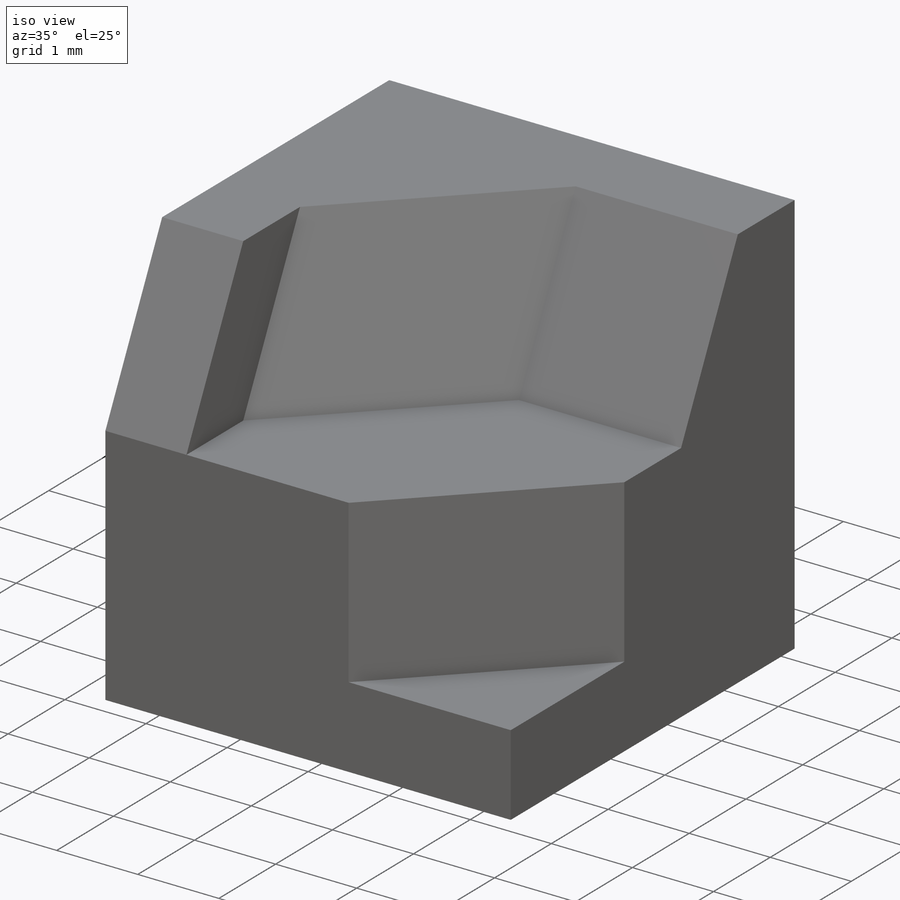
[diagram: iso view]
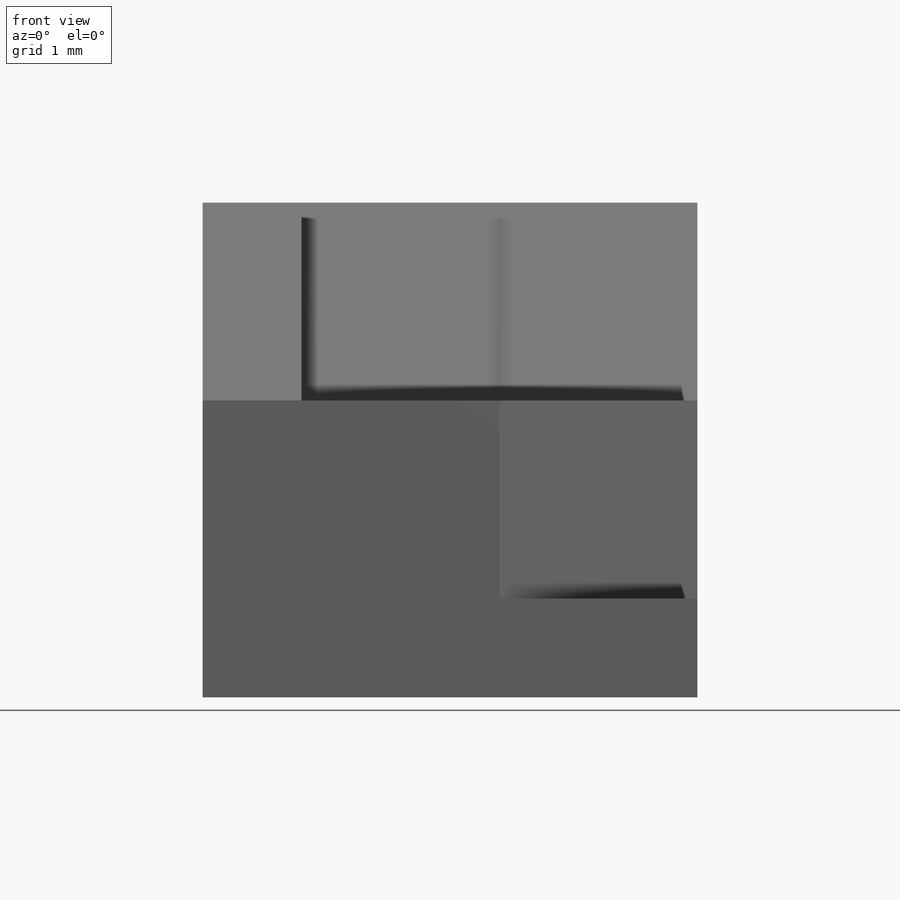
[diagram: front view]
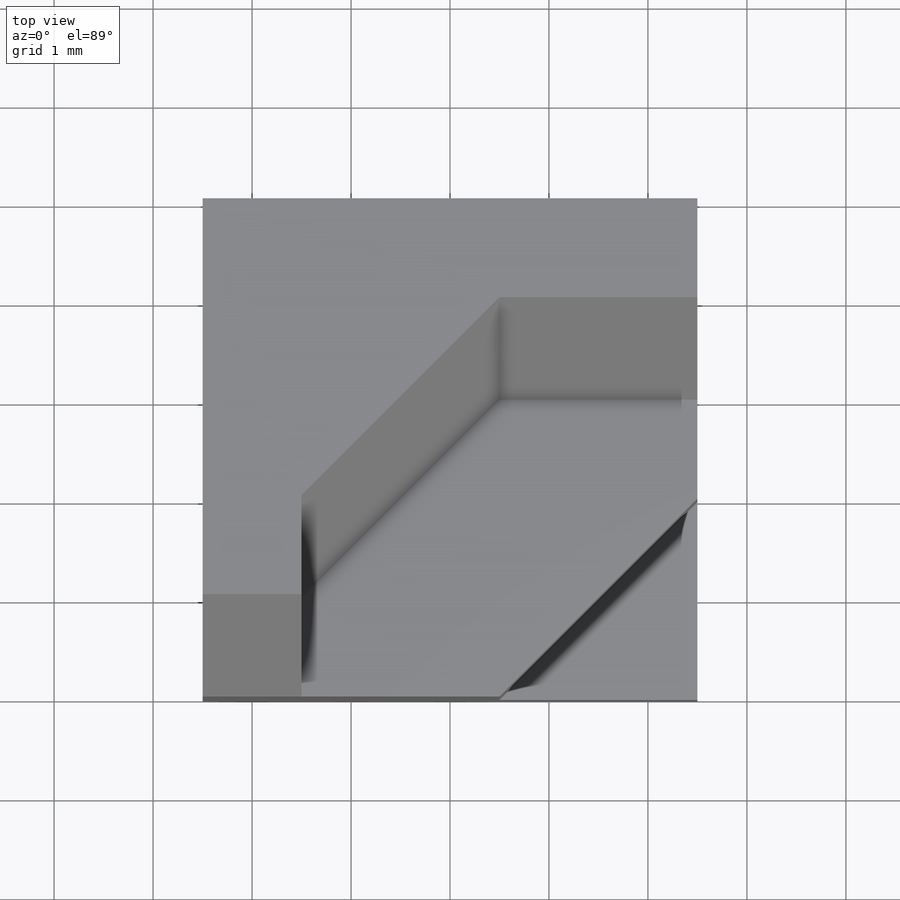
[diagram: top view]
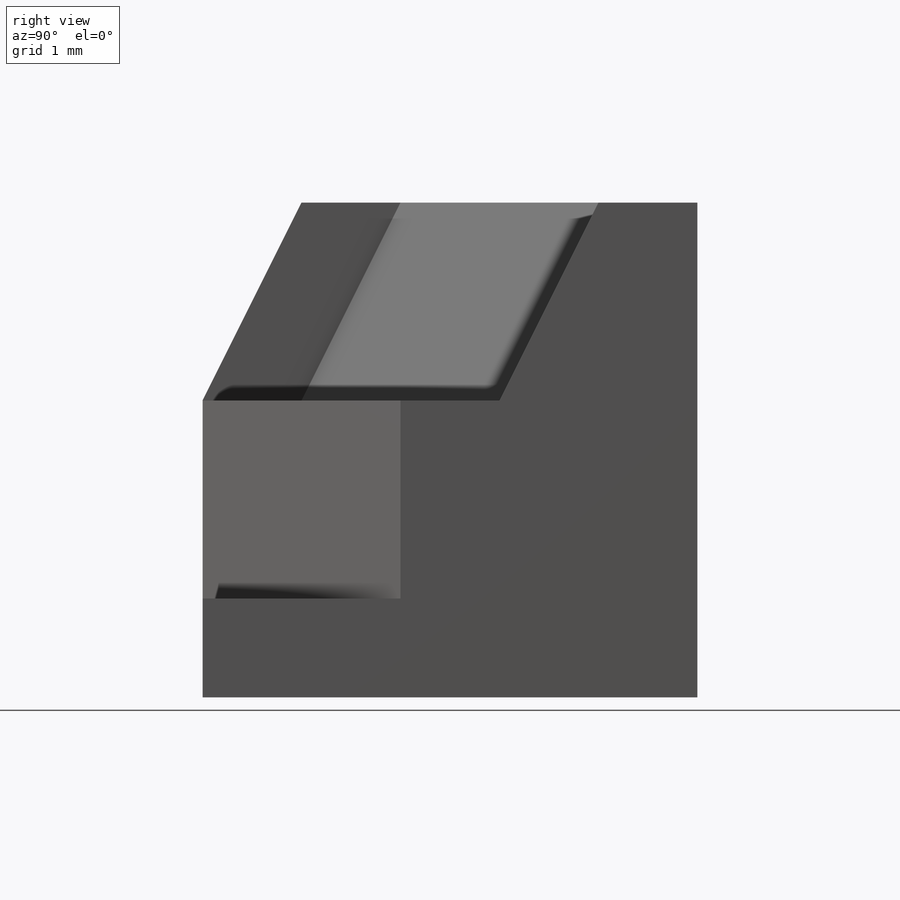
[diagram: right view]
SOLIDWORKS PART (.sldprt)
format: sldprt  version: not decoded by parser v0  size: 243,200 bytes
history: native  units: mm
features: sketch x10, cut_extrude x8, material x1, extrude x1, plane x1 (+13 scaffold rows collapsed)
feature tree (34):
  scaffold x13  (default folders/planes/origin — collapsed)
  material  "Material <not specified>"
  sketch  "Sketch1"  dims[D1=5.0mm D2=5.0mm]
  extrude  "Boss-Extrude1"  Depth=5mm
  sketch  "Sketch2"  dims[D1=2.0mm D2=2.0mm]
  cut_extrude  "Cut-Extrude1"  Depth=4mm
  sketch  "Sketch4"  dims[D1=1.0mm D2=2.0mm]
  cut_extrude  "Cut-Extrude2"  Depth=1mm
  sketch  "Sketch5"  dims[D1=2.0mm]
  cut_extrude  "Cut-Extrude9"  Depth=3mm
  sketch  "Sketch10"  dims[D1=1.0mm]
  cut_extrude  "Cut-Extrude10"  Depth=2mm
  sketch  "Sketch11"  dims[D1=1.0mm]
  cut_extrude  "Cut-Extrude11"  Depth=2mm
  sketch  "Sketch15"  dims[D1=1.0mm]
  plane  "Plane6"
  sketch  "Sketch16"
  cut_extrude  "Cut-Extrude14"  [1 undecoded]
  sketch  "Sketch17"
  cut_extrude  "Cut-Extrude15"  Depth=2mm
  sketch  "Sketch18"
  cut_extrude  "Cut-Extrude16"  Depth=2mm
decode coverage: 15 of 19 modeling features carry decoded parameters
note: 1 parameter value undecoded
note: suppression state not decoded; provenance and decode notes live in map.json
